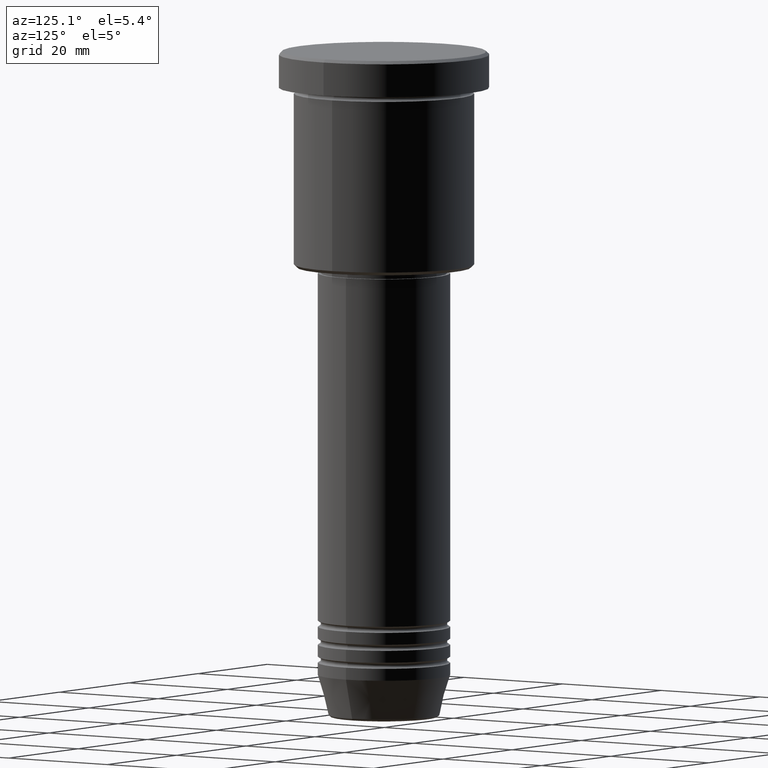
[diagram: clean part render]
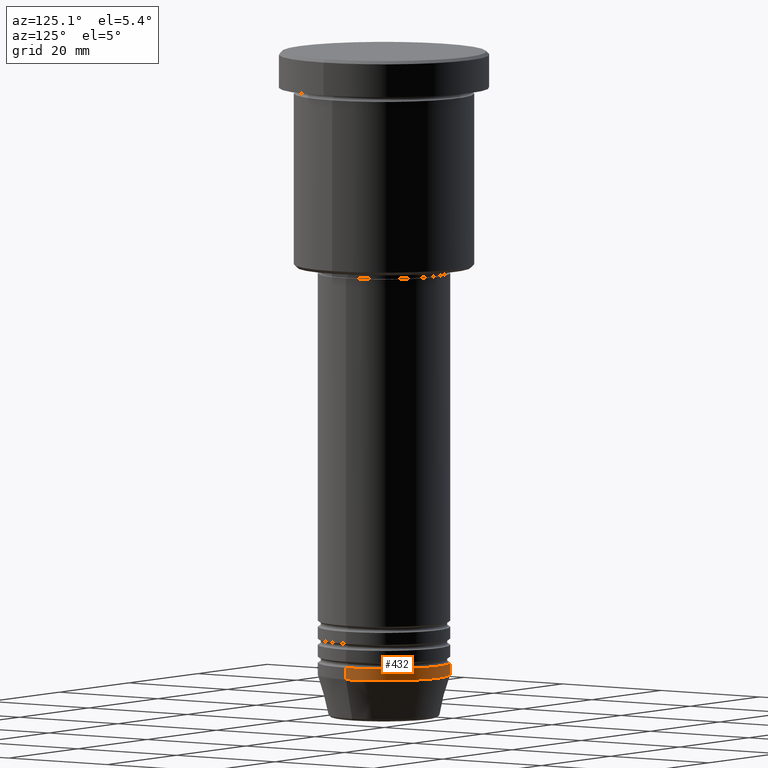
[diagram: same view with one face highlighted and labeled with its STEP entity id]
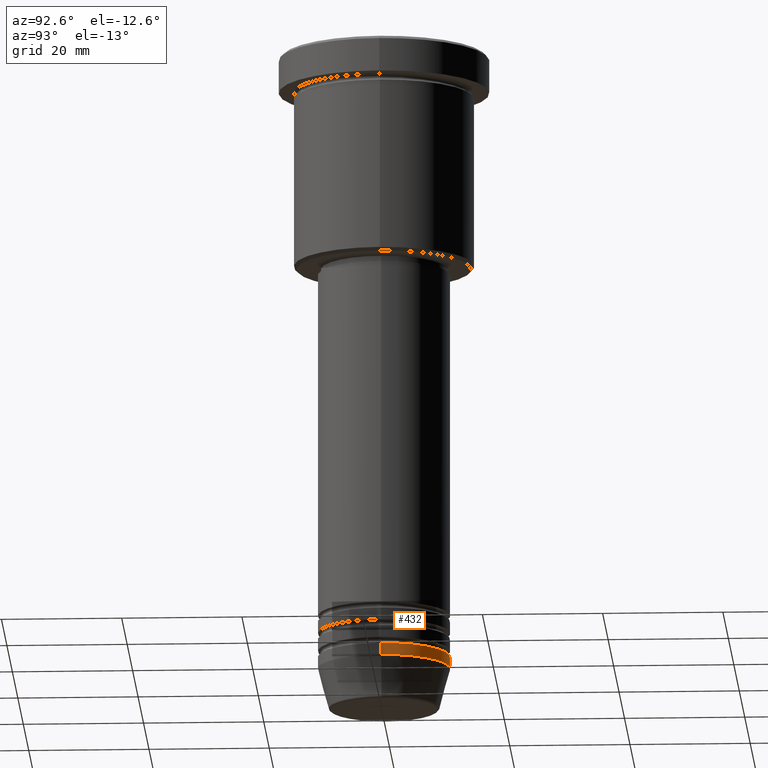
[diagram: same view with one face highlighted and labeled with its STEP entity id]
A machine part, auxiliary view. The second image highlights one B-rep face of the part: STEP entity #432.
A second angle (auxiliary view) of the same face is appended — the face is thin or edge-on in the first view.
In plain terms, the highlighted cylindrical surface (partial cylindrical patch) has radius 11 mm, axis along (-0, -0, 1).
Its self-contained STEP definition (entity closure, byte-faithful):
#5 = CYLINDRICAL_SURFACE ( 'NONE', #281, 11.00000000000000000 ) ;
#7 = VERTEX_POINT ( 'NONE', #494 ) ;
#22 = AXIS2_PLACEMENT_3D ( 'NONE', #135, #131, #958 ) ;
#36 = EDGE_LOOP ( 'NONE', ( #900, #349, #716, #618 ) ) ;
#120 = LINE ( 'NONE', #739, #869 ) ;
#131 = DIRECTION ( 'NONE',  ( -0.000000000000000000, -0.000000000000000000, 1.000000000000000000 ) ) ;
#135 = CARTESIAN_POINT ( 'NONE',  ( 0.000000000000000000, 0.000000000000000000, -102.0000000000000142 ) ) ;
#149 = EDGE_CURVE ( 'NONE', #255, #1085, #120, .T. ) ;
#198 = EDGE_CURVE ( 'NONE', #7, #1093, #306, .T. ) ;
#219 = DIRECTION ( 'NONE',  ( -0.000000000000000000, -0.000000000000000000, 1.000000000000000000 ) ) ;
#255 = VERTEX_POINT ( 'NONE', #1108 ) ;
#259 = FACE_OUTER_BOUND ( 'NONE', #36, .T. ) ;
#281 = AXIS2_PLACEMENT_3D ( 'NONE', #351, #1001, #917 ) ;
#293 = CARTESIAN_POINT ( 'NONE',  ( -11.00000000000000000, 1.347111479062088405E-15, -102.0000000000000142 ) ) ;
#297 = DIRECTION ( 'NONE',  ( -0.000000000000000000, -0.000000000000000000, 1.000000000000000000 ) ) ;
#306 = LINE ( 'NONE', #651, #688 ) ;
#349 = ORIENTED_EDGE ( 'NONE', *, *, #149, .T. ) ;
#351 = CARTESIAN_POINT ( 'NONE',  ( 0.000000000000000000, 0.000000000000000000, 0.000000000000000000 ) ) ;
#394 = DIRECTION ( 'NONE',  ( 1.000000000000000000, 0.000000000000000000, 0.000000000000000000 ) ) ;
#432 = ADVANCED_FACE ( 'NONE', ( #259 ), #5, .T. ) ;
#494 = CARTESIAN_POINT ( 'NONE',  ( 11.00000000000000000, 0.000000000000000000, -104.0000000000000142 ) ) ;
#566 = DIRECTION ( 'NONE',  ( -0.000000000000000000, -0.000000000000000000, 1.000000000000000000 ) ) ;
#587 = EDGE_CURVE ( 'NONE', #7, #255, #1027, .T. ) ;
#618 = ORIENTED_EDGE ( 'NONE', *, *, #198, .F. ) ;
#630 = AXIS2_PLACEMENT_3D ( 'NONE', #634, #219, #394 ) ;
#634 = CARTESIAN_POINT ( 'NONE',  ( 0.000000000000000000, 0.000000000000000000, -104.0000000000000142 ) ) ;
#651 = CARTESIAN_POINT ( 'NONE',  ( 11.00000000000000000, 0.000000000000000000, 0.000000000000000000 ) ) ;
#688 = VECTOR ( 'NONE', #297, 1000.000000000000000 ) ;
#716 = ORIENTED_EDGE ( 'NONE', *, *, #767, .F. ) ;
#739 = CARTESIAN_POINT ( 'NONE',  ( -11.00000000000000000, 1.347111479062088405E-15, 0.000000000000000000 ) ) ;
#767 = EDGE_CURVE ( 'NONE', #1093, #1085, #999, .T. ) ;
#869 = VECTOR ( 'NONE', #566, 1000.000000000000000 ) ;
#900 = ORIENTED_EDGE ( 'NONE', *, *, #587, .T. ) ;
#917 = DIRECTION ( 'NONE',  ( 1.000000000000000000, 0.000000000000000000, 0.000000000000000000 ) ) ;
#958 = DIRECTION ( 'NONE',  ( 1.000000000000000000, 0.000000000000000000, 0.000000000000000000 ) ) ;
#999 = CIRCLE ( 'NONE', #22, 11.00000000000000000 ) ;
#1001 = DIRECTION ( 'NONE',  ( -0.000000000000000000, -0.000000000000000000, 1.000000000000000000 ) ) ;
#1027 = CIRCLE ( 'NONE', #630, 11.00000000000000000 ) ;
#1085 = VERTEX_POINT ( 'NONE', #293 ) ;
#1093 = VERTEX_POINT ( 'NONE', #1106 ) ;
#1106 = CARTESIAN_POINT ( 'NONE',  ( 11.00000000000000000, 0.000000000000000000, -102.0000000000000142 ) ) ;
#1108 = CARTESIAN_POINT ( 'NONE',  ( -11.00000000000000000, 1.347111479062088405E-15, -104.0000000000000142 ) ) ;